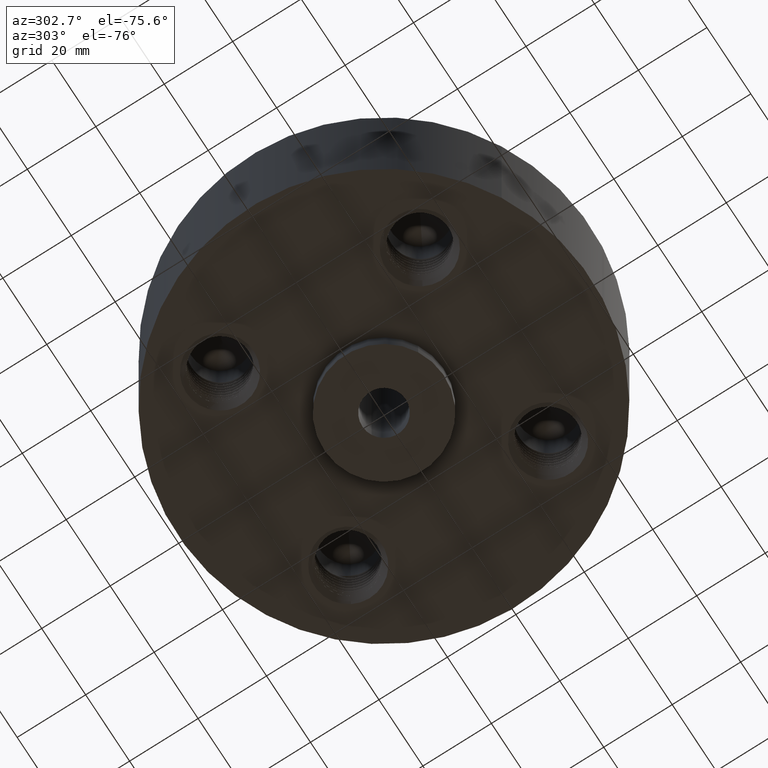
[diagram: clean part render]
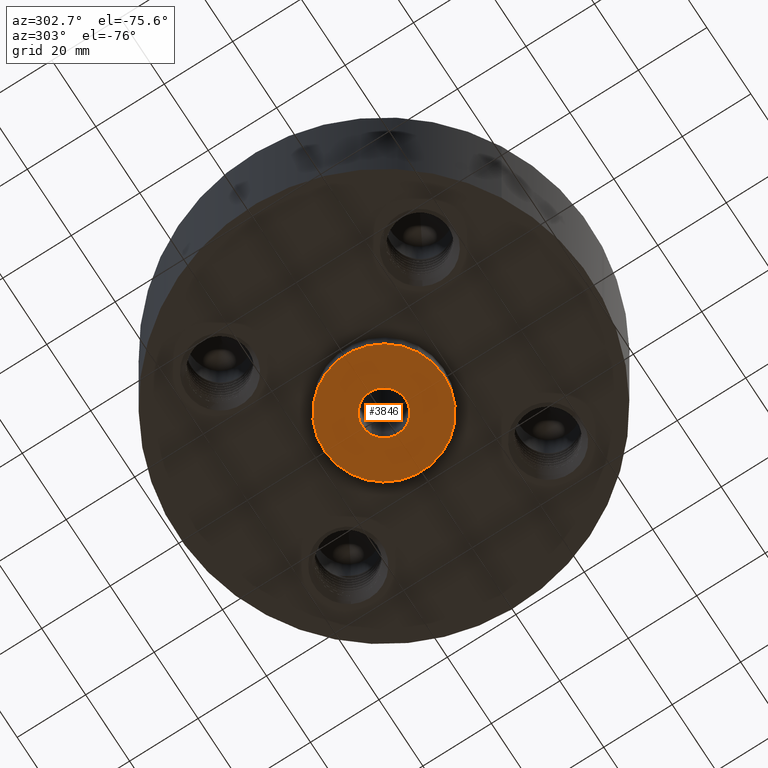
[diagram: same view with one face highlighted and labeled with its STEP entity id]
A machine part, auxiliary view. The second image highlights one B-rep face of the part: STEP entity #3846.
In plain terms, the highlighted planar face has unit normal (0, 0, -1).
Its self-contained STEP definition (entity closure, byte-faithful):
#3351=AXIS2_PLACEMENT_3D('Circle Axis2P3D',#3349,#3350,$) ;
#3377=AXIS2_PLACEMENT_3D('Circle Axis2P3D',#3375,#3376,$) ;
#3822=AXIS2_PLACEMENT_3D('Plane Axis2P3D',#3819,#3820,#3821) ;
#3830=AXIS2_PLACEMENT_3D('Circle Axis2P3D',#3828,#3829,$) ;
#3839=AXIS2_PLACEMENT_3D('Circle Axis2P3D',#3837,#3838,$) ;
#3349=CARTESIAN_POINT('Axis2P3D Location',(0.,0.,-0.250000000001)) ;
#3353=CARTESIAN_POINT('Vertex',(0.330803621638,0.605531967707,-0.250000000001)) ;
#3355=CARTESIAN_POINT('Vertex',(-0.330803621638,-0.605531967707,-0.250000000001)) ;
#3375=CARTESIAN_POINT('Axis2P3D Location',(0.,0.,-0.250000000001)) ;
#3819=CARTESIAN_POINT('Axis2P3D Location',(0.,0.690000000003,-0.250000000001)) ;
#3828=CARTESIAN_POINT('Axis2P3D Location',(0.,0.,-0.250000000001)) ;
#3832=CARTESIAN_POINT('Vertex',(0.119856384652,0.219395640473,-0.250000000001)) ;
#3834=CARTESIAN_POINT('Vertex',(-0.119856384652,-0.219395640473,-0.250000000001)) ;
#3837=CARTESIAN_POINT('Axis2P3D Location',(0.,0.,-0.250000000001)) ;
#3350=DIRECTION('Axis2P3D Direction',(0.,0.,-0.0393700787402)) ;
#3376=DIRECTION('Axis2P3D Direction',(0.,0.,-0.0393700787402)) ;
#3820=DIRECTION('Axis2P3D Direction',(0.,0.,-0.0393700787402)) ;
#3821=DIRECTION('Axis2P3D XDirection',(0.0393700787402,0.,0.)) ;
#3829=DIRECTION('Axis2P3D Direction',(0.,0.,-0.0393700787402)) ;
#3838=DIRECTION('Axis2P3D Direction',(0.,0.,-0.0393700787402)) ;
#3825=ORIENTED_EDGE('',*,*,#3379,.T.) ;
#3826=ORIENTED_EDGE('',*,*,#3357,.T.) ;
#3843=ORIENTED_EDGE('',*,*,#3836,.F.) ;
#3844=ORIENTED_EDGE('',*,*,#3841,.F.) ;
#3845=FACE_BOUND('',#3842,.T.) ;
#3846=ADVANCED_FACE('PartBody',(#3827,#3845),#3823,.T.) ;
#3352=CIRCLE('generated circle',#3351,0.690000000003) ;
#3378=CIRCLE('generated circle',#3377,0.690000000003) ;
#3831=CIRCLE('generated circle',#3830,0.250000000001) ;
#3840=CIRCLE('generated circle',#3839,0.250000000001) ;
#3357=EDGE_CURVE('',#3354,#3356,#3352,.T.) ;
#3379=EDGE_CURVE('',#3356,#3354,#3378,.T.) ;
#3836=EDGE_CURVE('',#3833,#3835,#3831,.T.) ;
#3841=EDGE_CURVE('',#3835,#3833,#3840,.T.) ;
#3824=EDGE_LOOP('',(#3825,#3826)) ;
#3842=EDGE_LOOP('',(#3843,#3844)) ;
#3827=FACE_OUTER_BOUND('',#3824,.T.) ;
#3823=PLANE('',#3822) ;
#3354=VERTEX_POINT('',#3353) ;
#3356=VERTEX_POINT('',#3355) ;
#3833=VERTEX_POINT('',#3832) ;
#3835=VERTEX_POINT('',#3834) ;